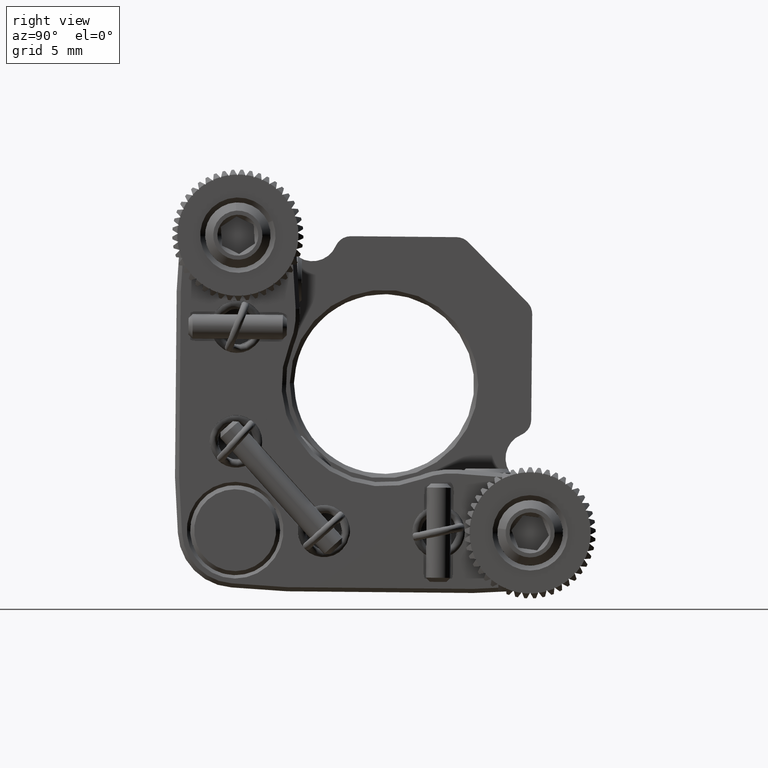
[diagram: clean part render]
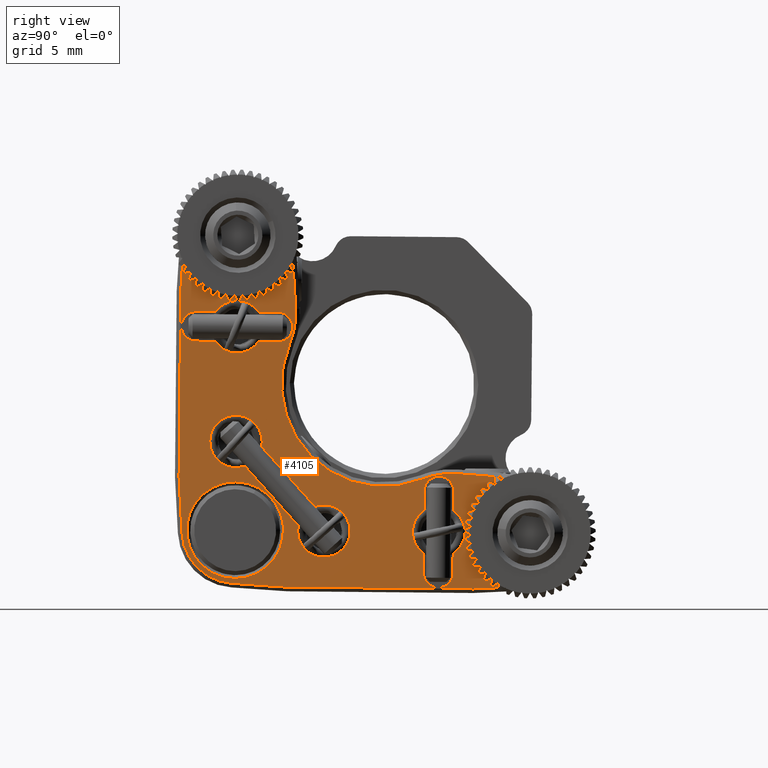
[diagram: same view with one face highlighted and labeled with its STEP entity id]
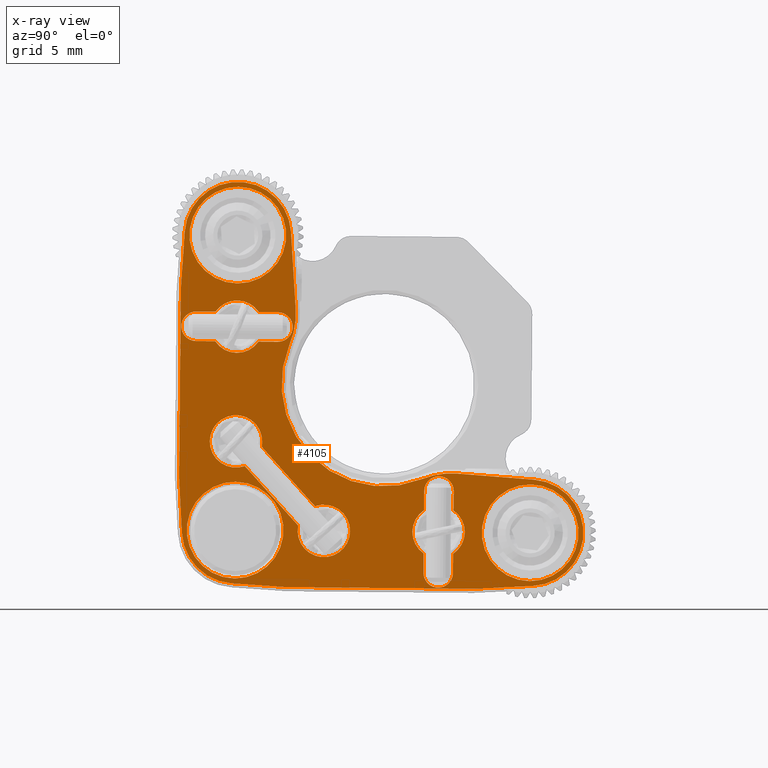
[diagram: x-ray of the same camera — body ghosted, the highlighted face saturated]
A machine part, right view. The second image highlights one B-rep face of the part: STEP entity #4105.
The next image is the same camera in x-ray: the body ghosted, the highlighted face saturated — about 0% of this face is hidden behind the body in this view.
In plain terms, the highlighted planar face has unit normal (1, -0, -0).
Its self-contained STEP definition (entity closure, byte-faithful):
#75 = CARTESIAN_POINT ( 'NONE',  ( 1.132181530632782929, -6.801256015369237851, 34.41260000721219114 ) ) ;
#191 = EDGE_CURVE ( 'NONE', #1647, #5839, #10726, .T. ) ;
#202 = ORIENTED_EDGE ( 'NONE', *, *, #1642, .T. ) ;
#226 = LINE ( 'NONE', #16017, #11507 ) ;
#401 = AXIS2_PLACEMENT_3D ( 'NONE', #31617, #4137, #18149 ) ;
#410 = CARTESIAN_POINT ( 'NONE',  ( 1.132181530701317440, 4.524775444023004134, 13.80835690791564474 ) ) ;
#525 = AXIS2_PLACEMENT_3D ( 'NONE', #32737, #24765, #14135 ) ;
#820 = DIRECTION ( 'NONE',  ( -1.000000000000000000, 6.383674169540705541E-19, 4.535192354038399595E-18 ) ) ;
#1008 = CARTESIAN_POINT ( 'NONE',  ( 1.132181530701320993, 7.573881240127864345, 12.83048374784421064 ) ) ;
#1040 = CARTESIAN_POINT ( 'NONE',  ( 1.132181530701317440, 2.029068120440683742, 25.24525071682813504 ) ) ;
#1186 = CARTESIAN_POINT ( 'NONE',  ( 1.132181530701317440, 6.324700453131343103, 13.79192640012140281 ) ) ;
#1203 = DIRECTION ( 'NONE',  ( -1.000000000000000000, 6.383674169540705541E-19, 4.535192354038399595E-18 ) ) ;
#1315 = EDGE_CURVE ( 'NONE', #2551, #14177, #10640, .T. ) ;
#1529 = CIRCLE ( 'NONE', #18508, 4.749999999913591786 ) ;
#1534 = ORIENTED_EDGE ( 'NONE', *, *, #32045, .T. ) ;
#1624 = CARTESIAN_POINT ( 'NONE',  ( 1.132181530701317440, 4.535520305532213747, 14.98543221149211746 ) ) ;
#1642 = EDGE_CURVE ( 'NONE', #15510, #17613, #3049, .T. ) ;
#1647 = VERTEX_POINT ( 'NONE', #410 ) ;
#1681 = DIRECTION ( 'NONE',  ( 0.000000000000000000, -0.009128059885697346193, -0.9999583383935167769 ) ) ;
#1746 = VERTEX_POINT ( 'NONE', #29104 ) ;
#1909 = CIRCLE ( 'NONE', #13253, 4.749999999949914731 ) ;
#1995 = AXIS2_PLACEMENT_3D ( 'NONE', #75, #21536, #13045 ) ;
#2017 = DIRECTION ( 'NONE',  ( -1.000000000000000000, 6.383674169540755615E-19, 4.535192354038399595E-18 ) ) ;
#2026 = CARTESIAN_POINT ( 'NONE',  ( 1.132181530701318328, -10.38615954401707775, 19.64996944878038931 ) ) ;
#2107 = CARTESIAN_POINT ( 'NONE',  ( 1.132181530701317440, -3.118864465589847867, 16.68859779275247845 ) ) ;
#2169 = CARTESIAN_POINT ( 'NONE',  ( 1.132181530701317440, -6.916145096385129420, 21.82676073897740920 ) ) ;
#2394 = CARTESIAN_POINT ( 'NONE',  ( 1.132181530701317440, 4.628959800263829472, 25.22151776112532673 ) ) ;
#2551 = VERTEX_POINT ( 'NONE', #21168 ) ;
#2645 = ORIENTED_EDGE ( 'NONE', *, *, #7725, .T. ) ;
#2681 = VERTEX_POINT ( 'NONE', #13024 ) ;
#2710 = CARTESIAN_POINT ( 'NONE',  ( 1.132181530632782929, -6.828183792032024968, 31.46272290895286261 ) ) ;
#2746 = EDGE_CURVE ( 'NONE', #15174, #33138, #1529, .T. ) ;
#2892 = CARTESIAN_POINT ( 'NONE',  ( 1.132181530701317440, 2.052801076143492054, 27.84514239665127633 ) ) ;
#3016 = DIRECTION ( 'NONE',  ( -1.000000000000000000, 6.383674169540755615E-19, 4.535192354038399595E-18 ) ) ;
#3030 = ORIENTED_EDGE ( 'NONE', *, *, #7835, .T. ) ;
#3049 = LINE ( 'NONE', #32845, #34517 ) ;
#3157 = ORIENTED_EDGE ( 'NONE', *, *, #32176, .T. ) ;
#3213 = VERTEX_POINT ( 'NONE', #34248 ) ;
#3253 = AXIS2_PLACEMENT_3D ( 'NONE', #7431, #20721, #31535 ) ;
#3577 = EDGE_CURVE ( 'NONE', #24949, #19321, #10050, .T. ) ;
#3620 = DIRECTION ( 'NONE',  ( 0.000000000000000000, -0.009128059885695559428, -0.9999583383935168879 ) ) ;
#3836 = ORIENTED_EDGE ( 'NONE', *, *, #10463, .T. ) ;
#3866 = VECTOR ( 'NONE', #10204, 1000.000000000000114 ) ;
#4020 = DIRECTION ( 'NONE',  ( 0.000000000000000000, 0.9999583383935168879, -0.009128059885695531672 ) ) ;
#4105 = ADVANCED_FACE ( 'NONE', ( #11675, #9007, #30475, #6353, #27632, #16988, #27990 ), #32762, .T. ) ;
#4137 = DIRECTION ( 'NONE',  ( -1.000000000000000000, 6.383674169540705541E-19, 4.535192354038399595E-18 ) ) ;
#4262 = EDGE_CURVE ( 'NONE', #34829, #2551, #28750, .T. ) ;
#4323 = AXIS2_PLACEMENT_3D ( 'NONE', #18835, #24148, #23979 ) ;
#4350 = ORIENTED_EDGE ( 'NONE', *, *, #31377, .T. ) ;
#4562 = EDGE_CURVE ( 'NONE', #25593, #27242, #11660, .T. ) ;
#4665 = CARTESIAN_POINT ( 'NONE',  ( 1.132181530701317440, -10.33405315424279358, 25.35810672996037241 ) ) ;
#4897 = DIRECTION ( 'NONE',  ( 0.000000000000000000, 0.009128059885686629071, 0.9999583383935169989 ) ) ;
#4917 = ORIENTED_EDGE ( 'NONE', *, *, #22692, .T. ) ;
#4940 = CARTESIAN_POINT ( 'NONE',  ( 1.132181530701317440, 5.447558098291406026, 16.30003750000230056 ) ) ;
#4999 = VECTOR ( 'NONE', #30099, 1000.000000000000114 ) ;
#5005 = DIRECTION ( 'NONE',  ( 0.000000000000000000, 0.9999583383935168879, -0.009128059885695533407 ) ) ;
#5016 = CARTESIAN_POINT ( 'NONE',  ( 1.132181530701317440, 1.916212107308447710, 12.88212944214463462 ) ) ;
#5192 = EDGE_CURVE ( 'NONE', #24403, #14040, #17981, .T. ) ;
#5270 = DIRECTION ( 'NONE',  ( -4.540830466650252995E-18, -0.009128059885695536876, -0.9999583383935167769 ) ) ;
#5539 = EDGE_CURVE ( 'NONE', #14310, #15510, #13010, .T. ) ;
#5839 = VERTEX_POINT ( 'NONE', #1624 ) ;
#5966 = CARTESIAN_POINT ( 'NONE',  ( 1.132181530753016530, 11.18838830284866326, 13.00272875301513409 ) ) ;
#6066 = ORIENTED_EDGE ( 'NONE', *, *, #12795, .T. ) ;
#6317 = EDGE_CURVE ( 'NONE', #14177, #29649, #31585, .T. ) ;
#6353 = FACE_BOUND ( 'NONE', #10499, .T. ) ;
#6399 = CARTESIAN_POINT ( 'NONE',  ( 1.132181530660548718, 11.00676122110981936, 13.29916774004069779 ) ) ;
#6462 = ORIENTED_EDGE ( 'NONE', *, *, #5539, .T. ) ;
#6484 = DIRECTION ( 'NONE',  ( 0.000000000000000000, 0.009128059885695529937, 0.9999583383935167769 ) ) ;
#6514 = CARTESIAN_POINT ( 'NONE',  ( 1.132181530701317440, 6.428884809372156894, 25.20508725333107591 ) ) ;
#6639 = ORIENTED_EDGE ( 'NONE', *, *, #4262, .T. ) ;
#6683 = VERTEX_POINT ( 'NONE', #21553 ) ;
#6787 = VECTOR ( 'NONE', #16041, 1000.000000000000114 ) ;
#6808 = CARTESIAN_POINT ( 'NONE',  ( 1.132181530701317440, 2.069231583937743757, 29.64506740575956556 ) ) ;
#6894 = ORIENTED_EDGE ( 'NONE', *, *, #6317, .T. ) ;
#7132 = EDGE_CURVE ( 'NONE', #10868, #10868, #32565, .T. ) ;
#7382 = VECTOR ( 'NONE', #14021, 1000.000000000000114 ) ;
#7431 = CARTESIAN_POINT ( 'NONE',  ( 1.132181530701317440, -6.852248677185237113, 28.82646910773203075 ) ) ;
#7725 = EDGE_CURVE ( 'NONE', #19321, #24403, #26291, .T. ) ;
#7774 = CARTESIAN_POINT ( 'NONE',  ( 1.132181530709703843, 6.594358229402304872, 19.86019597436929018 ) ) ;
#7835 = EDGE_CURVE ( 'NONE', #6683, #23776, #32958, .T. ) ;
#8007 = VERTEX_POINT ( 'NONE', #32294 ) ;
#8198 = AXIS2_PLACEMENT_3D ( 'NONE', #29985, #3016, #27149 ) ;
#8509 = LINE ( 'NONE', #19341, #7382 ) ;
#8512 = CARTESIAN_POINT ( 'NONE',  ( 1.132181530701317440, -3.271748229842998512, 29.90808616095284833 ) ) ;
#8630 = LINE ( 'NONE', #24774, #14878 ) ;
#8979 = ORIENTED_EDGE ( 'NONE', *, *, #191, .T. ) ;
#9007 = FACE_BOUND ( 'NONE', #21889, .T. ) ;
#9142 = VERTEX_POINT ( 'NONE', #15315 ) ;
#9361 = ORIENTED_EDGE ( 'NONE', *, *, #12467, .T. ) ;
#9385 = CARTESIAN_POINT ( 'NONE',  ( 1.132181530581749085, -6.801256015369237851, 34.41260000721219114 ) ) ;
#9808 = CARTESIAN_POINT ( 'NONE',  ( 1.132181530701317440, 4.559670881942273546, 17.63107329630674158 ) ) ;
#9974 = CARTESIAN_POINT ( 'NONE',  ( 1.132181530701317440, 2.069231583937744201, 29.64506740575961174 ) ) ;
#9981 = EDGE_LOOP ( 'NONE', ( #30622, #34879, #34358, #10928, #8979, #25939, #28392, #1534 ) ) ;
#9994 = EDGE_CURVE ( 'NONE', #32860, #12089, #28717, .T. ) ;
#10011 = ORIENTED_EDGE ( 'NONE', *, *, #30093, .T. ) ;
#10050 = CIRCLE ( 'NONE', #29868, 3.250000000087867047 ) ;
#10204 = DIRECTION ( 'NONE',  ( 4.540830466650252995E-18, 0.009128059885695536876, 0.9999583383935167769 ) ) ;
#10441 = VECTOR ( 'NONE', #27477, 1000.000000000000227 ) ;
#10460 = DIRECTION ( 'NONE',  ( -5.969433141411526211E-19, -0.9999583383935167769, 0.009128059885695536876 ) ) ;
#10463 = EDGE_CURVE ( 'NONE', #12089, #6683, #27574, .T. ) ;
#10499 = EDGE_LOOP ( 'NONE', ( #4350 ) ) ;
#10640 = LINE ( 'NONE', #31756, #32779 ) ;
#10726 = LINE ( 'NONE', #2394, #3866 ) ;
#10868 = VERTEX_POINT ( 'NONE', #2710 ) ;
#10926 = ORIENTED_EDGE ( 'NONE', *, *, #27735, .T. ) ;
#10928 = ORIENTED_EDGE ( 'NONE', *, *, #27978, .T. ) ;
#11184 = AXIS2_PLACEMENT_3D ( 'NONE', #1040, #27818, #11850 ) ;
#11218 = DIRECTION ( 'NONE',  ( -2.952294170628490192E-18, 0.6671904086673566825, -0.7448872119873488629 ) ) ;
#11235 = VERTEX_POINT ( 'NONE', #15451 ) ;
#11507 = VECTOR ( 'NONE', #11218, 1000.000000000000114 ) ;
#11588 = CARTESIAN_POINT ( 'NONE',  ( 1.132181530701318328, -3.791925173871485644, 12.93423583191892057 ) ) ;
#11597 = ORIENTED_EDGE ( 'NONE', *, *, #5192, .T. ) ;
#11618 = DIRECTION ( 'NONE',  ( 2.952294170628484800E-18, -0.6671904086673577927, 0.7448872119873477526 ) ) ;
#11660 = LINE ( 'NONE', #6514, #33785 ) ;
#11675 = FACE_BOUND ( 'NONE', #31354, .T. ) ;
#11694 = CIRCLE ( 'NONE', #15084, 1.600000000000001199 ) ;
#11836 = EDGE_CURVE ( 'NONE', #17322, #18146, #8509, .T. ) ;
#11850 = DIRECTION ( 'NONE',  ( 5.969433141411526211E-19, 0.9999583383935167769, -0.009128059885695536876 ) ) ;
#11913 = LINE ( 'NONE', #19902, #13636 ) ;
#12089 = VERTEX_POINT ( 'NONE', #2107 ) ;
#12467 = EDGE_CURVE ( 'NONE', #11235, #15174, #30616, .T. ) ;
#12795 = EDGE_CURVE ( 'NONE', #17613, #17322, #18294, .T. ) ;
#12909 = DIRECTION ( 'NONE',  ( -1.000000000000000000, 6.383674169540705541E-19, 4.535192354038399595E-18 ) ) ;
#12953 = AXIS2_PLACEMENT_3D ( 'NONE', #30410, #30594, #3620 ) ;
#12997 = DIRECTION ( 'NONE',  ( -1.000000000000000000, 6.383674169540705541E-19, 4.535192354038399595E-18 ) ) ;
#13010 = LINE ( 'NONE', #5016, #21915 ) ;
#13024 = CARTESIAN_POINT ( 'NONE',  ( 1.132181530686892312, -10.21127904328005265, 16.24657165090920330 ) ) ;
#13045 = DIRECTION ( 'NONE',  ( 0.000000000000000000, -0.009128059885695434528, -0.9999583383935167769 ) ) ;
#13238 = CARTESIAN_POINT ( 'NONE',  ( 1.132181530746704690, -8.013015451151508373, 29.62018837328245624 ) ) ;
#13253 = AXIS2_PLACEMENT_3D ( 'NONE', #20479, #33945, #6484 ) ;
#13363 = CIRCLE ( 'NONE', #4323, 0.8999999999999995781 ) ;
#13372 = CARTESIAN_POINT ( 'NONE',  ( 1.132181530701317440, -9.360359777066143749, 27.94932675289210167 ) ) ;
#13636 = VECTOR ( 'NONE', #14751, 1000.000000000000114 ) ;
#13790 = CARTESIAN_POINT ( 'NONE',  ( 1.132181530701317440, -10.38615954401707242, 19.64996944878039997 ) ) ;
#13811 = AXIS2_PLACEMENT_3D ( 'NONE', #35061, #18067, #26393 ) ;
#13887 = DIRECTION ( 'NONE',  ( 8.535180059945724099E-19, 0.9988664877529243036, 0.04759978617743113039 ) ) ;
#13991 = VERTEX_POINT ( 'NONE', #15162 ) ;
#14021 = DIRECTION ( 'NONE',  ( -2.789094490136088673E-19, -0.9968887252643963137, 0.07882175740699315369 ) ) ;
#14040 = VERTEX_POINT ( 'NONE', #2026 ) ;
#14135 = DIRECTION ( 'NONE',  ( 0.000000000000000000, -0.9999583383935167769, 0.009128059885693852460 ) ) ;
#14177 = VERTEX_POINT ( 'NONE', #13372 ) ;
#14303 = ORIENTED_EDGE ( 'NONE', *, *, #27911, .T. ) ;
#14310 = VERTEX_POINT ( 'NONE', #11588 ) ;
#14374 = DIRECTION ( 'NONE',  ( 4.488163007046165777E-18, -0.06061006056218730398, 0.9981615202754752225 ) ) ;
#14558 = VERTEX_POINT ( 'NONE', #6399 ) ;
#14656 = VERTEX_POINT ( 'NONE', #24317 ) ;
#14751 = DIRECTION ( 'NONE',  ( 4.540830466650252995E-18, 0.009128059885695536876, 0.9999583383935167769 ) ) ;
#14878 = VECTOR ( 'NONE', #5270, 1000.000000000000114 ) ;
#14901 = DIRECTION ( 'NONE',  ( 0.000000000000000000, 0.009128059885697247314, 0.9999583383935168879 ) ) ;
#15084 = AXIS2_PLACEMENT_3D ( 'NONE', #22440, #820, #22271 ) ;
#15162 = CARTESIAN_POINT ( 'NONE',  ( 1.132181530701317440, -5.521212880880778329, 29.71435632408113037 ) ) ;
#15174 = VERTEX_POINT ( 'NONE', #31219 ) ;
#15315 = CARTESIAN_POINT ( 'NONE',  ( 1.132181530701317440, -4.344137577304310049, 29.70361146257193141 ) ) ;
#15451 = CARTESIAN_POINT ( 'NONE',  ( 1.132181530653040058, 4.447886031225182002, 19.53204521065413957 ) ) ;
#15510 = VERTEX_POINT ( 'NONE', #1008 ) ;
#15581 = DIRECTION ( 'NONE',  ( 0.000000000000000000, 0.9999583383935168879, -0.009128059885695529937 ) ) ;
#15582 = EDGE_LOOP ( 'NONE', ( #15822 ) ) ;
#15640 = VECTOR ( 'NONE', #26817, 1000.000000000000114 ) ;
#15822 = ORIENTED_EDGE ( 'NONE', *, *, #26415, .T. ) ;
#16017 = CARTESIAN_POINT ( 'NONE',  ( 1.132181530701317440, -5.349430901258454440, 21.50209686542711651 ) ) ;
#16041 = DIRECTION ( 'NONE',  ( -5.969433141411526211E-19, -0.9999583383935167769, 0.009128059885695536876 ) ) ;
#16513 = ORIENTED_EDGE ( 'NONE', *, *, #2746, .T. ) ;
#16988 = FACE_BOUND ( 'NONE', #15582, .T. ) ;
#17197 = DIRECTION ( 'NONE',  ( -1.000000000000000000, 6.383674169540705541E-19, 4.535192354038399595E-18 ) ) ;
#17269 = DIRECTION ( 'NONE',  ( 5.969433141411526211E-19, 0.9999583383935167769, -0.009128059885695536876 ) ) ;
#17322 = VERTEX_POINT ( 'NONE', #20890 ) ;
#17341 = EDGE_CURVE ( 'NONE', #34180, #13991, #18823, .T. ) ;
#17355 = ORIENTED_EDGE ( 'NONE', *, *, #11836, .T. ) ;
#17613 = VERTEX_POINT ( 'NONE', #5966 ) ;
#17981 = LINE ( 'NONE', #4665, #20228 ) ;
#18067 = DIRECTION ( 'NONE',  ( 1.000000000000000000, -6.383674169540755615E-19, -4.535192354038399595E-18 ) ) ;
#18143 = LINE ( 'NONE', #9974, #15640 ) ;
#18146 = VERTEX_POINT ( 'NONE', #7774 ) ;
#18149 = DIRECTION ( 'NONE',  ( 0.000000000000000000, -0.9999583383935167769, 0.009128059885693852460 ) ) ;
#18294 = CIRCLE ( 'NONE', #18844, 3.249999999947237761 ) ;
#18412 = EDGE_CURVE ( 'NONE', #3213, #21978, #8630, .T. ) ;
#18508 = AXIS2_PLACEMENT_3D ( 'NONE', #13238, #34683, #4897 ) ;
#18581 = ORIENTED_EDGE ( 'NONE', *, *, #29579, .T. ) ;
#18823 = CIRCLE ( 'NONE', #22213, 1.600000000000000311 ) ;
#18835 = CARTESIAN_POINT ( 'NONE',  ( 1.132181530701317440, 5.424737948577170954, 13.80014165401851756 ) ) ;
#18836 = DIRECTION ( 'NONE',  ( -4.567377401834104528E-18, -0.06582652052731206849, -0.9978310824960642256 ) ) ;
#18844 = AXIS2_PLACEMENT_3D ( 'NONE', #30378, #27724, #25055 ) ;
#18977 = LINE ( 'NONE', #30139, #10441 ) ;
#19024 = DIRECTION ( 'NONE',  ( 5.969433141411526211E-19, 0.9999583383935167769, -0.009128059885695536876 ) ) ;
#19292 = LINE ( 'NONE', #13790, #4999 ) ;
#19321 = VERTEX_POINT ( 'NONE', #24297 ) ;
#19341 = CARTESIAN_POINT ( 'NONE',  ( 1.132181530701317440, 11.28985970934432181, 19.48893319529559776 ) ) ;
#19857 = EDGE_CURVE ( 'NONE', #2681, #24801, #33624, .T. ) ;
#19902 = CARTESIAN_POINT ( 'NONE',  ( 1.132181530701317440, 4.578630997348606790, 19.70811110443743175 ) ) ;
#19941 = EDGE_LOOP ( 'NONE', ( #26635 ) ) ;
#20114 = LINE ( 'NONE', #6808, #22994 ) ;
#20228 = VECTOR ( 'NONE', #23299, 1000.000000000000114 ) ;
#20357 = CIRCLE ( 'NONE', #525, 0.8999999999999995781 ) ;
#20479 = CARTESIAN_POINT ( 'NONE',  ( 1.132181530714969631, 6.219954881721330153, 15.12497452935049225 ) ) ;
#20695 = EDGE_CURVE ( 'NONE', #23776, #32860, #226, .T. ) ;
#20699 = CARTESIAN_POINT ( 'NONE',  ( 1.132181530708314510, -7.191563313118149559, 13.17121743940966461 ) ) ;
#20721 = DIRECTION ( 'NONE',  ( -1.000000000000000000, 6.383674169540705541E-19, 4.535192354038399595E-18 ) ) ;
#20890 = CARTESIAN_POINT ( 'NONE',  ( 1.132181530725736351, 11.28985970934240157, 19.48893319527128654 ) ) ;
#20934 = EDGE_CURVE ( 'NONE', #5839, #31577, #33590, .T. ) ;
#21168 = CARTESIAN_POINT ( 'NONE',  ( 1.132181530701317440, -8.183284473489667477, 27.93858189138289205 ) ) ;
#21536 = DIRECTION ( 'NONE',  ( -1.000000000000000000, 6.383674169540755615E-19, 4.535192354038399595E-18 ) ) ;
#21553 = CARTESIAN_POINT ( 'NONE',  ( 1.132181530701317440, -6.373055321983307486, 20.32175127158518890 ) ) ;
#21889 = EDGE_LOOP ( 'NONE', ( #26726, #10926, #18581, #3157, #6639, #33958, #6894, #14303 ) ) ;
#21910 = AXIS2_PLACEMENT_3D ( 'NONE', #27805, #1203, #4020 ) ;
#21915 = VECTOR ( 'NONE', #19024, 1000.000000000000114 ) ;
#21978 = VERTEX_POINT ( 'NONE', #26946 ) ;
#22014 = CARTESIAN_POINT ( 'NONE',  ( 1.132181530701317440, -2.095240044864997930, 17.86894338659439896 ) ) ;
#22213 = AXIS2_PLACEMENT_3D ( 'NONE', #31704, #12909, #34534 ) ;
#22271 = DIRECTION ( 'NONE',  ( 0.000000000000000000, 0.9999583383935167769, -0.009128059885699865011 ) ) ;
#22440 = CARTESIAN_POINT ( 'NONE',  ( 1.132181530701317440, 5.447558098291406026, 16.30003750000230056 ) ) ;
#22692 = EDGE_CURVE ( 'NONE', #33138, #24949, #30330, .T. ) ;
#22719 = ORIENTED_EDGE ( 'NONE', *, *, #30664, .T. ) ;
#22994 = VECTOR ( 'NONE', #17269, 1000.000000000000114 ) ;
#23299 = DIRECTION ( 'NONE',  ( -4.540830466650252995E-18, -0.009128059885695536876, -0.9999583383935167769 ) ) ;
#23420 = ORIENTED_EDGE ( 'NONE', *, *, #34958, .T. ) ;
#23770 = ORIENTED_EDGE ( 'NONE', *, *, #19857, .T. ) ;
#23776 = VERTEX_POINT ( 'NONE', #28799 ) ;
#23979 = DIRECTION ( 'NONE',  ( 0.000000000000000000, -0.9999583383935167769, 0.009128059885695779738 ) ) ;
#24148 = DIRECTION ( 'NONE',  ( -1.000000000000000000, 6.383674169540705541E-19, 4.535192354038399595E-18 ) ) ;
#24297 = CARTESIAN_POINT ( 'NONE',  ( 1.132181530640396616, -10.04420703357088840, 34.62653619892798673 ) ) ;
#24317 = CARTESIAN_POINT ( 'NONE',  ( 1.132181530701317440, 4.570415743451481383, 18.80814859988326404 ) ) ;
#24403 = VERTEX_POINT ( 'NONE', #35078 ) ;
#24645 = DIRECTION ( 'NONE',  ( 0.000000000000000000, -0.9999583383935167769, 0.009128059885693852460 ) ) ;
#24765 = DIRECTION ( 'NONE',  ( -1.000000000000000000, 6.383674169540705541E-19, 4.535192354038399595E-18 ) ) ;
#24774 = CARTESIAN_POINT ( 'NONE',  ( 1.132181530701317440, 6.428884809372158671, 25.20508725333107591 ) ) ;
#24801 = VERTEX_POINT ( 'NONE', #20699 ) ;
#24896 = LINE ( 'NONE', #2892, #6787 ) ;
#24949 = VERTEX_POINT ( 'NONE', #25501 ) ;
#25055 = DIRECTION ( 'NONE',  ( 0.000000000000000000, 0.009128059885695372078, 0.9999583383935168879 ) ) ;
#25165 = EDGE_CURVE ( 'NONE', #21978, #25593, #11694, .T. ) ;
#25342 = CARTESIAN_POINT ( 'NONE',  ( 1.132181530724011065, -3.271748229865649726, 29.90808616095147343 ) ) ;
#25501 = CARTESIAN_POINT ( 'NONE',  ( 1.132181530689626348, -3.557231074500434520, 34.60958270404039183 ) ) ;
#25563 = ORIENTED_EDGE ( 'NONE', *, *, #3577, .T. ) ;
#25593 = VERTEX_POINT ( 'NONE', #26675 ) ;
#25898 = ORIENTED_EDGE ( 'NONE', *, *, #20695, .T. ) ;
#25939 = ORIENTED_EDGE ( 'NONE', *, *, #20934, .T. ) ;
#26291 = LINE ( 'NONE', #34450, #34305 ) ;
#26393 = DIRECTION ( 'NONE',  ( 0.000000000000000000, 0.009128059885694634820, 0.9999583383935168879 ) ) ;
#26415 = EDGE_CURVE ( 'NONE', #8007, #8007, #33104, .T. ) ;
#26635 = ORIENTED_EDGE ( 'NONE', *, *, #7132, .T. ) ;
#26675 = CARTESIAN_POINT ( 'NONE',  ( 1.132181530701317440, 6.335445314640550052, 14.96900170369786842 ) ) ;
#26726 = ORIENTED_EDGE ( 'NONE', *, *, #17341, .T. ) ;
#26817 = DIRECTION ( 'NONE',  ( 5.969433141411526211E-19, 0.9999583383935167769, -0.009128059885695536876 ) ) ;
#26905 = EDGE_LOOP ( 'NONE', ( #4917, #25563, #2645, #11597, #22719, #23770, #10011, #6462, #202, #6066, #17355, #23420, #9361, #16513 ) ) ;
#26920 = DIRECTION ( 'NONE',  ( -1.000000000000000000, 6.383674169540705541E-19, 4.535192354038399595E-18 ) ) ;
#26946 = CARTESIAN_POINT ( 'NONE',  ( 1.132181530701317440, 6.359595891050599192, 17.61464278851248366 ) ) ;
#27004 = CIRCLE ( 'NONE', #401, 0.8999999999999995781 ) ;
#27149 = DIRECTION ( 'NONE',  ( 0.000000000000000000, -0.009128059885695559428, -0.9999583383935168879 ) ) ;
#27242 = VERTEX_POINT ( 'NONE', #1186 ) ;
#27364 = AXIS2_PLACEMENT_3D ( 'NONE', #4940, #26920, #15581 ) ;
#27477 = DIRECTION ( 'NONE',  ( 3.214486754851900394E-19, 0.9975792236080431863, -0.06953914455595291977 ) ) ;
#27574 = LINE ( 'NONE', #28106, #33834 ) ;
#27632 = FACE_BOUND ( 'NONE', #19941, .T. ) ;
#27724 = DIRECTION ( 'NONE',  ( 1.000000000000000000, -6.383674169540755615E-19, -4.535192354038399595E-18 ) ) ;
#27735 = EDGE_CURVE ( 'NONE', #13991, #9142, #20114, .T. ) ;
#27805 = CARTESIAN_POINT ( 'NONE',  ( 1.132181530701317440, -1.552150270463211745, 16.36393391920217155 ) ) ;
#27818 = DIRECTION ( 'NONE',  ( 1.000000000000000000, -6.383674169540804726E-19, -4.535192354038398825E-18 ) ) ;
#27911 = EDGE_CURVE ( 'NONE', #29649, #34180, #18143, .T. ) ;
#27978 = EDGE_CURVE ( 'NONE', #27242, #1647, #13363, .T. ) ;
#27990 = FACE_OUTER_BOUND ( 'NONE', #26905, .T. ) ;
#28015 = CARTESIAN_POINT ( 'NONE',  ( 1.132181530701317440, -9.352144523169018342, 28.84928925744626937 ) ) ;
#28106 = CARTESIAN_POINT ( 'NONE',  ( 1.132181530701317440, -3.118864465589852308, 16.68859779275247490 ) ) ;
#28392 = ORIENTED_EDGE ( 'NONE', *, *, #34276, .T. ) ;
#28442 = AXIS2_PLACEMENT_3D ( 'NONE', #2169, #12997, #5005 ) ;
#28451 = CARTESIAN_POINT ( 'NONE',  ( 1.132181530675141268, 2.116216491201158068, 25.33082242269921380 ) ) ;
#28717 = CIRCLE ( 'NONE', #21910, 1.600000000000000755 ) ;
#28750 = CIRCLE ( 'NONE', #3253, 1.600000000000000311 ) ;
#28799 = CARTESIAN_POINT ( 'NONE',  ( 1.132181530701317440, -5.349430901258468651, 21.50209686542713072 ) ) ;
#29104 = CARTESIAN_POINT ( 'NONE',  ( 1.132181530701317440, -4.360568085098561752, 27.90368645346362442 ) ) ;
#29579 = EDGE_CURVE ( 'NONE', #9142, #1746, #27004, .T. ) ;
#29649 = VERTEX_POINT ( 'NONE', #31961 ) ;
#29868 = AXIS2_PLACEMENT_3D ( 'NONE', #9385, #34033, #14901 ) ;
#29985 = CARTESIAN_POINT ( 'NONE',  ( 1.132181530660545388, -6.965561093311780638, 16.41334991612886895 ) ) ;
#30093 = EDGE_CURVE ( 'NONE', #24801, #14310, #18977, .T. ) ;
#30099 = DIRECTION ( 'NONE',  ( -4.496458282875010048E-18, 0.05131638929789265197, -0.9986824461206009751 ) ) ;
#30139 = CARTESIAN_POINT ( 'NONE',  ( 1.132181530701317440, -7.191563313118636280, 13.17121743940267642 ) ) ;
#30330 = LINE ( 'NONE', #8512, #34236 ) ;
#30378 = CARTESIAN_POINT ( 'NONE',  ( 1.132181530750145493, 11.03368899777156997, 16.24904483818634304 ) ) ;
#30410 = CARTESIAN_POINT ( 'NONE',  ( 1.132181530660548718, 11.03368899777156997, 16.24904483818634304 ) ) ;
#30475 = FACE_BOUND ( 'NONE', #9981, .T. ) ;
#30587 = ORIENTED_EDGE ( 'NONE', *, *, #9994, .T. ) ;
#30594 = DIRECTION ( 'NONE',  ( -1.000000000000000000, 6.383674169540755615E-19, 4.535192354038399595E-18 ) ) ;
#30616 = CIRCLE ( 'NONE', #32846, 6.249999999965893949 ) ;
#30622 = ORIENTED_EDGE ( 'NONE', *, *, #18412, .T. ) ;
#30664 = EDGE_CURVE ( 'NONE', #14040, #2681, #19292, .T. ) ;
#31219 = CARTESIAN_POINT ( 'NONE',  ( 1.132181530702831784, -3.639028930660266781, 27.76796216735883505 ) ) ;
#31354 = EDGE_LOOP ( 'NONE', ( #30587, #3836, #3030, #25898 ) ) ;
#31377 = EDGE_CURVE ( 'NONE', #14558, #14558, #32185, .T. ) ;
#31535 = DIRECTION ( 'NONE',  ( 0.000000000000000000, 0.9999583383935168879, -0.009128059885695533407 ) ) ;
#31577 = VERTEX_POINT ( 'NONE', #9808 ) ;
#31585 = CIRCLE ( 'NONE', #34420, 0.8999999999999995781 ) ;
#31617 = CARTESIAN_POINT ( 'NONE',  ( 1.132181530701317440, -4.352352831201436345, 28.80364895801774594 ) ) ;
#31704 = CARTESIAN_POINT ( 'NONE',  ( 1.132181530701317440, -6.852248677185237113, 28.82646910773203075 ) ) ;
#31756 = CARTESIAN_POINT ( 'NONE',  ( 1.132181530701317440, 2.052801076143492054, 27.84514239665127633 ) ) ;
#31961 = CARTESIAN_POINT ( 'NONE',  ( 1.132181530701317440, -9.343929269271892935, 29.74925176200043353 ) ) ;
#32045 = EDGE_CURVE ( 'NONE', #14656, #3213, #20357, .T. ) ;
#32176 = EDGE_CURVE ( 'NONE', #1746, #34829, #24896, .T. ) ;
#32185 = CIRCLE ( 'NONE', #12953, 2.949999999884766577 ) ;
#32294 = CARTESIAN_POINT ( 'NONE',  ( 1.132181530660545388, -6.992488869973530363, 13.46347281798322193 ) ) ;
#32481 = CARTESIAN_POINT ( 'NONE',  ( 1.132181530701317440, -8.166853965695430873, 29.73850690049120615 ) ) ;
#32565 = CIRCLE ( 'NONE', #1995, 2.949999999998452971 ) ;
#32737 = CARTESIAN_POINT ( 'NONE',  ( 1.132181530701317440, 5.470378248005645538, 18.79993334598614041 ) ) ;
#32762 = PLANE ( 'NONE',  #11184 ) ;
#32779 = VECTOR ( 'NONE', #10460, 1000.000000000000114 ) ;
#32845 = CARTESIAN_POINT ( 'NONE',  ( 1.132181530701317440, 7.573881240127971815, 12.83048374784421419 ) ) ;
#32846 = AXIS2_PLACEMENT_3D ( 'NONE', #28451, #2017, #1681 ) ;
#32860 = VERTEX_POINT ( 'NONE', #22014 ) ;
#32897 = CARTESIAN_POINT ( 'NONE',  ( 1.132181530701317440, -5.537643388675053124, 27.91443131497284114 ) ) ;
#32958 = CIRCLE ( 'NONE', #28442, 1.600000000000000311 ) ;
#33104 = CIRCLE ( 'NONE', #8198, 2.949999999884766577 ) ;
#33138 = VERTEX_POINT ( 'NONE', #25342 ) ;
#33281 = DIRECTION ( 'NONE',  ( -4.540830466650252995E-18, -0.009128059885695536876, -0.9999583383935167769 ) ) ;
#33590 = CIRCLE ( 'NONE', #27364, 1.600000000000000977 ) ;
#33624 = CIRCLE ( 'NONE', #13811, 3.250000000038911097 ) ;
#33785 = VECTOR ( 'NONE', #33281, 1000.000000000000114 ) ;
#33834 = VECTOR ( 'NONE', #11618, 1000.000000000000114 ) ;
#33945 = DIRECTION ( 'NONE',  ( 1.000000000000000000, -6.383674169540755615E-19, -4.535192354038399595E-18 ) ) ;
#33958 = ORIENTED_EDGE ( 'NONE', *, *, #1315, .T. ) ;
#34033 = DIRECTION ( 'NONE',  ( 1.000000000000000000, -6.383674169540755615E-19, -4.535192354038399595E-18 ) ) ;
#34180 = VERTEX_POINT ( 'NONE', #32481 ) ;
#34236 = VECTOR ( 'NONE', #14374, 1000.000000000000114 ) ;
#34248 = CARTESIAN_POINT ( 'NONE',  ( 1.132181530701317440, 6.370340752559822128, 18.79171809208901323 ) ) ;
#34276 = EDGE_CURVE ( 'NONE', #31577, #14656, #11913, .T. ) ;
#34305 = VECTOR ( 'NONE', #18836, 1000.000000000000114 ) ;
#34358 = ORIENTED_EDGE ( 'NONE', *, *, #4562, .T. ) ;
#34420 = AXIS2_PLACEMENT_3D ( 'NONE', #28015, #17197, #24645 ) ;
#34450 = CARTESIAN_POINT ( 'NONE',  ( 1.132181530701317440, -10.04420703348144706, 34.62653619892596168 ) ) ;
#34517 = VECTOR ( 'NONE', #13887, 1000.000000000000114 ) ;
#34534 = DIRECTION ( 'NONE',  ( 0.000000000000000000, 0.9999583383935168879, -0.009128059885695533407 ) ) ;
#34683 = DIRECTION ( 'NONE',  ( 1.000000000000000000, -6.383674169540755615E-19, -4.535192354038399595E-18 ) ) ;
#34829 = VERTEX_POINT ( 'NONE', #32897 ) ;
#34879 = ORIENTED_EDGE ( 'NONE', *, *, #25165, .T. ) ;
#34958 = EDGE_CURVE ( 'NONE', #18146, #11235, #1909, .T. ) ;
#35061 = CARTESIAN_POINT ( 'NONE',  ( 1.132181530715314022, -6.965561093311780638, 16.41334991612886895 ) ) ;
#35078 = CARTESIAN_POINT ( 'NONE',  ( 1.132181530701314776, -10.28240745994237315, 31.01577586277959853 ) ) ;